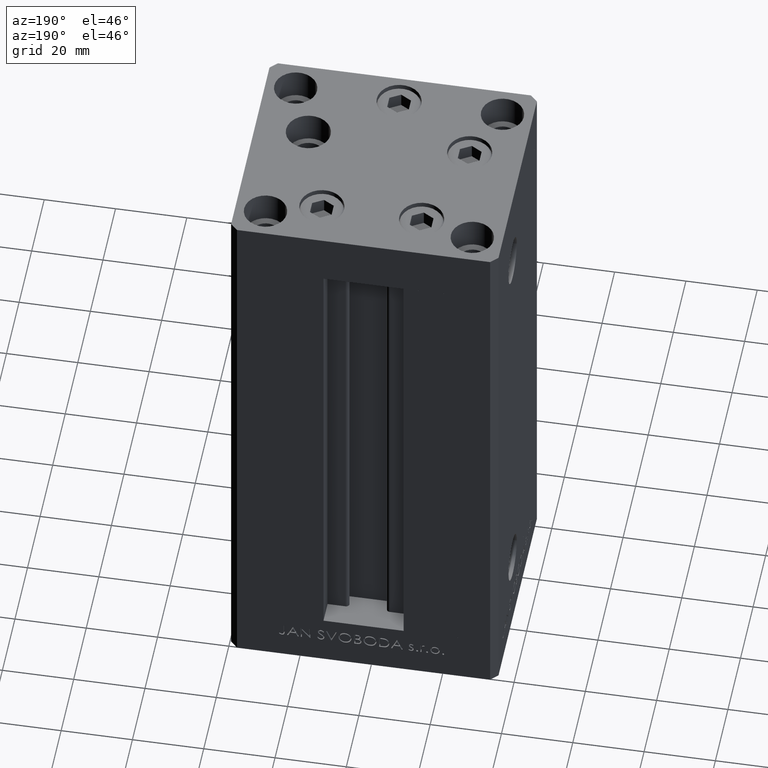
[diagram: clean part render]
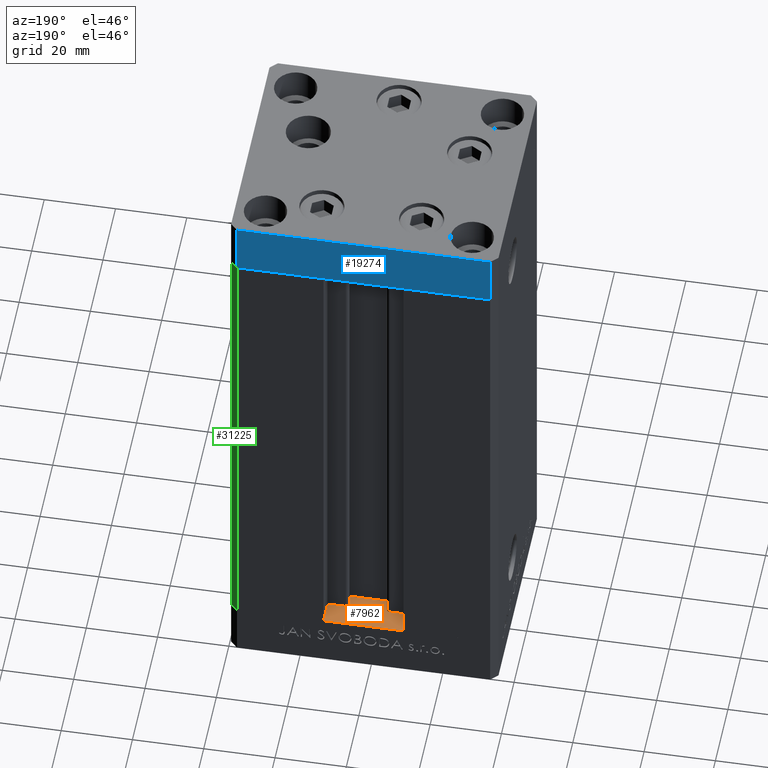
[diagram: same view with three faces highlighted in distinct colors, each labeled with its STEP entity id]
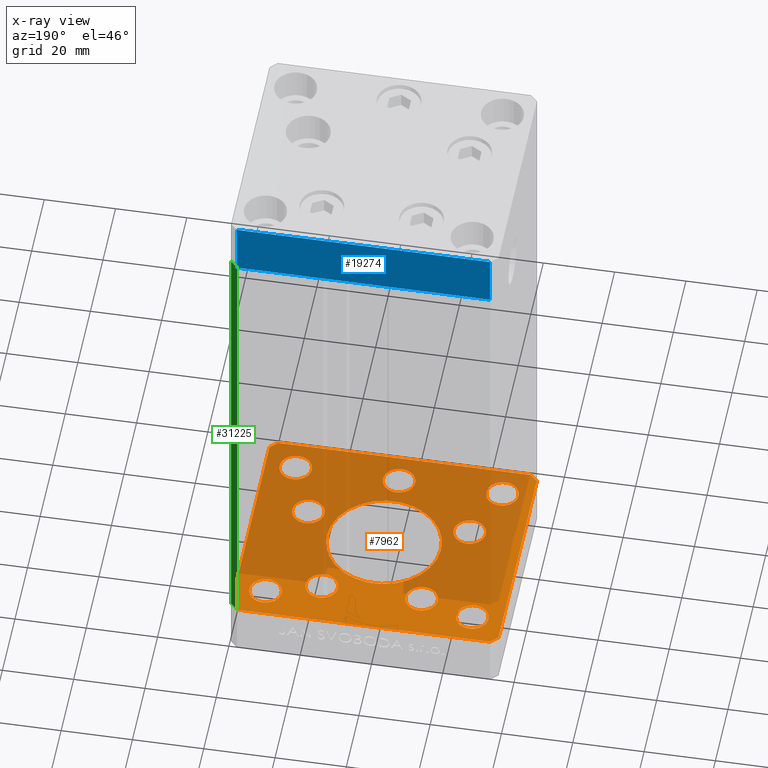
[diagram: x-ray of the same camera — body ghosted, the three highlighted faces saturated]
A machine part, auxiliary view with three faces highlighted in distinct colors.
The next image is the same camera in x-ray (body ghosted, the three faces saturated) — at least one of them is partly hidden behind the body in this view.
Their STEP definitions:

[orange] entity #7962 — the highlighted planar face has unit normal (0, 0, -1).
#389 = ORIENTED_EDGE ( 'NONE', *, *, #17131, .T. ) ;
#549 = VERTEX_POINT ( 'NONE', #37712 ) ;
#665 = EDGE_CURVE ( 'NONE', #48239, #40675, #27623, .T. ) ;
#1143 = CARTESIAN_POINT ( 'NONE',  ( 22.62741699796953299, -8.000000000000000000, -15.00000000000000000 ) ) ;
#1375 = EDGE_LOOP ( 'NONE', ( #14475, #33980 ) ) ;
#1492 = CARTESIAN_POINT ( 'NONE',  ( 18.49106857963324657, 19.50000000000000000, -15.00000000000000000 ) ) ;
#1618 = CARTESIAN_POINT ( 'NONE',  ( -33.50000000000000000, -23.99999999999999645, -15.00000000000000000 ) ) ;
#1633 = DIRECTION ( 'NONE',  ( 1.000000000000000000, 0.000000000000000000, 0.000000000000000000 ) ) ;
#1649 = CARTESIAN_POINT ( 'NONE',  ( -29.00000000000000000, -23.99999999999999645, -15.00000000000000000 ) ) ;
#1726 = CARTESIAN_POINT ( 'NONE',  ( -13.99106857963324124, 19.50000000000000000, -15.00000000000000000 ) ) ;
#2021 = FACE_BOUND ( 'NONE', #40340, .T. ) ;
#2109 = AXIS2_PLACEMENT_3D ( 'NONE', #15072, #14821, #11311 ) ;
#2144 = DIRECTION ( 'NONE',  ( 1.000000000000000000, 0.000000000000000000, 0.000000000000000000 ) ) ;
#2594 = ORIENTED_EDGE ( 'NONE', *, *, #11873, .T. ) ;
#2760 = DIRECTION ( 'NONE',  ( 1.000000000000000000, 0.000000000000000000, 0.000000000000000000 ) ) ;
#2959 = DIRECTION ( 'NONE',  ( 1.000000000000000000, 0.000000000000000000, 0.000000000000000000 ) ) ;
#3828 = VERTEX_POINT ( 'NONE', #26213 ) ;
#3832 = CARTESIAN_POINT ( 'NONE',  ( 0.000000000000000000, 0.000000000000000000, -15.00000000000000000 ) ) ;
#3853 = LINE ( 'NONE', #26477, #18593 ) ;
#4710 = VERTEX_POINT ( 'NONE', #7095 ) ;
#4744 = ORIENTED_EDGE ( 'NONE', *, *, #665, .T. ) ;
#4761 = AXIS2_PLACEMENT_3D ( 'NONE', #11418, #30513, #14676 ) ;
#5422 = CARTESIAN_POINT ( 'NONE',  ( 35.50000000000000000, 32.49999999999999289, -15.00000000000000000 ) ) ;
#5463 = CARTESIAN_POINT ( 'NONE',  ( 37.50000000000000711, 30.50000000000001421, -15.00000000000000000 ) ) ;
#5563 = ORIENTED_EDGE ( 'NONE', *, *, #34541, .T. ) ;
#5908 = DIRECTION ( 'NONE',  ( 1.000000000000000000, 0.000000000000000000, 0.000000000000000000 ) ) ;
#6121 = ORIENTED_EDGE ( 'NONE', *, *, #16997, .T. ) ;
#6242 = CARTESIAN_POINT ( 'NONE',  ( -35.50000000000001421, -32.50000000000000711, -15.00000000000000000 ) ) ;
#6304 = FACE_BOUND ( 'NONE', #22305, .T. ) ;
#6325 = EDGE_CURVE ( 'NONE', #3828, #4710, #26069, .T. ) ;
#6387 = CIRCLE ( 'NONE', #4761, 4.500000000000005329 ) ;
#6556 = CIRCLE ( 'NONE', #34632, 16.00000000000000000 ) ;
#6636 = VERTEX_POINT ( 'NONE', #26996 ) ;
#6801 = FACE_BOUND ( 'NONE', #38789, .T. ) ;
#6893 = CARTESIAN_POINT ( 'NONE',  ( 37.50000000000000711, -30.49999999999992895, -15.00000000000000000 ) ) ;
#7095 = CARTESIAN_POINT ( 'NONE',  ( 27.12741699796953654, -8.000000000000000000, -15.00000000000000000 ) ) ;
#7187 = LINE ( 'NONE', #23492, #39725 ) ;
#7531 = AXIS2_PLACEMENT_3D ( 'NONE', #39502, #35723, #43026 ) ;
#7655 = CARTESIAN_POINT ( 'NONE',  ( -37.50000000000000000, -30.50000000000004263, -15.00000000000000000 ) ) ;
#7962 = ADVANCED_FACE ( 'NONE', ( #13839, #6801, #40969, #28916, #17342, #44722, #2021, #6304, #9829, #17600, #32431 ), #47742, .F. ) ;
#8389 = DIRECTION ( 'NONE',  ( 1.000000000000000000, 0.000000000000000000, 0.000000000000000000 ) ) ;
#8611 = DIRECTION ( 'NONE',  ( 0.000000000000000000, -0.000000000000000000, -1.000000000000000000 ) ) ;
#8674 = VERTEX_POINT ( 'NONE', #36187 ) ;
#8741 = ORIENTED_EDGE ( 'NONE', *, *, #24234, .F. ) ;
#8829 = EDGE_CURVE ( 'NONE', #46564, #41507, #10557, .T. ) ;
#9117 = DIRECTION ( 'NONE',  ( -0.000000000000000000, 0.000000000000000000, 1.000000000000000000 ) ) ;
#9727 = EDGE_CURVE ( 'NONE', #549, #46564, #47928, .T. ) ;
#9829 = FACE_OUTER_BOUND ( 'NONE', #30497, .T. ) ;
#9933 = DIRECTION ( 'NONE',  ( -0.000000000000000000, 0.000000000000000000, 1.000000000000000000 ) ) ;
#10395 = EDGE_CURVE ( 'NONE', #17504, #26304, #18147, .T. ) ;
#10557 = LINE ( 'NONE', #37919, #48578 ) ;
#11031 = DIRECTION ( 'NONE',  ( -0.000000000000000000, 0.000000000000000000, 1.000000000000000000 ) ) ;
#11156 = CIRCLE ( 'NONE', #21578, 4.499999999999999112 ) ;
#11209 = VERTEX_POINT ( 'NONE', #26112 ) ;
#11311 = DIRECTION ( 'NONE',  ( 1.000000000000000000, 0.000000000000000000, 0.000000000000000000 ) ) ;
#11418 = CARTESIAN_POINT ( 'NONE',  ( 13.99106857963324124, 19.50000000000000000, -15.00000000000000000 ) ) ;
#11452 = CARTESIAN_POINT ( 'NONE',  ( 0.000000000000000000, -24.00000000000001066, -15.00000000000000000 ) ) ;
#11873 = EDGE_CURVE ( 'NONE', #14382, #11209, #43080, .T. ) ;
#11947 = EDGE_LOOP ( 'NONE', ( #8741, #40451 ) ) ;
#12068 = DIRECTION ( 'NONE',  ( -0.000000000000000000, 0.000000000000000000, 1.000000000000000000 ) ) ;
#12475 = EDGE_LOOP ( 'NONE', ( #44978, #5563 ) ) ;
#12590 = CARTESIAN_POINT ( 'NONE',  ( -18.49106857963323947, 19.50000000000000000, -15.00000000000000000 ) ) ;
#12608 = DIRECTION ( 'NONE',  ( 1.000000000000000000, 0.000000000000000000, 0.000000000000000000 ) ) ;
#12839 = CARTESIAN_POINT ( 'NONE',  ( -22.62741699796953299, -8.000000000000000000, -15.00000000000000000 ) ) ;
#12952 = DIRECTION ( 'NONE',  ( -0.000000000000000000, 0.000000000000000000, 1.000000000000000000 ) ) ;
#12957 = DIRECTION ( 'NONE',  ( -0.000000000000000000, 0.000000000000000000, 1.000000000000000000 ) ) ;
#12995 = VERTEX_POINT ( 'NONE', #34157 ) ;
#13241 = DIRECTION ( 'NONE',  ( 1.000000000000000000, 0.000000000000000000, 0.000000000000000000 ) ) ;
#13344 = VECTOR ( 'NONE', #36386, 1000.000000000000000 ) ;
#13352 = CARTESIAN_POINT ( 'NONE',  ( 35.50000000000000000, 32.49999999999999289, -15.00000000000000000 ) ) ;
#13742 = ORIENTED_EDGE ( 'NONE', *, *, #29387, .T. ) ;
#13839 = FACE_BOUND ( 'NONE', #11947, .T. ) ;
#14076 = CARTESIAN_POINT ( 'NONE',  ( -35.50000000000000711, 32.49999999999997868, -15.00000000000000000 ) ) ;
#14290 = CARTESIAN_POINT ( 'NONE',  ( 24.50000000000000000, 24.00000000000000355, -15.00000000000000000 ) ) ;
#14324 = DIRECTION ( 'NONE',  ( 0.7071067811865463515, 0.7071067811865487940, 0.000000000000000000 ) ) ;
#14332 = DIRECTION ( 'NONE',  ( -0.000000000000000000, 0.000000000000000000, 1.000000000000000000 ) ) ;
#14382 = VERTEX_POINT ( 'NONE', #33959 ) ;
#14443 = VERTEX_POINT ( 'NONE', #12590 ) ;
#14475 = ORIENTED_EDGE ( 'NONE', *, *, #10395, .T. ) ;
#14625 = CARTESIAN_POINT ( 'NONE',  ( 0.000000000000000000, 0.000000000000000000, -15.00000000000000000 ) ) ;
#14676 = DIRECTION ( 'NONE',  ( 1.000000000000000000, 0.000000000000000000, 0.000000000000000000 ) ) ;
#14821 = DIRECTION ( 'NONE',  ( -0.000000000000000000, 0.000000000000000000, 1.000000000000000000 ) ) ;
#15055 = AXIS2_PLACEMENT_3D ( 'NONE', #17706, #9933, #5908 ) ;
#15072 = CARTESIAN_POINT ( 'NONE',  ( 0.000000000000000000, -24.00000000000001066, -15.00000000000000000 ) ) ;
#15096 = AXIS2_PLACEMENT_3D ( 'NONE', #42765, #42271, #12608 ) ;
#15437 = VERTEX_POINT ( 'NONE', #14076 ) ;
#15854 = CIRCLE ( 'NONE', #38338, 4.500000000000000888 ) ;
#15914 = DIRECTION ( 'NONE',  ( 2.275047181608926165E-16, -1.000000000000000000, 0.000000000000000000 ) ) ;
#15970 = VERTEX_POINT ( 'NONE', #26001 ) ;
#16012 = ORIENTED_EDGE ( 'NONE', *, *, #8829, .F. ) ;
#16135 = CIRCLE ( 'NONE', #23379, 4.500000000000000888 ) ;
#16682 = ORIENTED_EDGE ( 'NONE', *, *, #24018, .F. ) ;
#16962 = CARTESIAN_POINT ( 'NONE',  ( 13.99106857963324124, 19.50000000000000000, -15.00000000000000000 ) ) ;
#16992 = CARTESIAN_POINT ( 'NONE',  ( 29.00000000000000000, 24.00000000000000355, -15.00000000000000000 ) ) ;
#16997 = EDGE_CURVE ( 'NONE', #4710, #3828, #48723, .T. ) ;
#17131 = EDGE_CURVE ( 'NONE', #14443, #6636, #27868, .T. ) ;
#17148 = CARTESIAN_POINT ( 'NONE',  ( 4.500000000000001776, -24.00000000000001066, -15.00000000000000000 ) ) ;
#17342 = FACE_BOUND ( 'NONE', #41907, .T. ) ;
#17504 = VERTEX_POINT ( 'NONE', #17148 ) ;
#17600 = FACE_BOUND ( 'NONE', #12475, .T. ) ;
#17693 = DIRECTION ( 'NONE',  ( 0.000000000000000000, 1.000000000000000000, 0.000000000000000000 ) ) ;
#17706 = CARTESIAN_POINT ( 'NONE',  ( -13.99106857963324124, 19.50000000000000000, -15.00000000000000000 ) ) ;
#17739 = EDGE_LOOP ( 'NONE', ( #23174, #4744 ) ) ;
#17991 = EDGE_CURVE ( 'NONE', #21274, #21705, #48758, .T. ) ;
#18147 = CIRCLE ( 'NONE', #2109, 4.500000000000001776 ) ;
#18286 = VECTOR ( 'NONE', #41816, 1000.000000000000000 ) ;
#18593 = VECTOR ( 'NONE', #15914, 1000.000000000000000 ) ;
#19271 = VERTEX_POINT ( 'NONE', #47776 ) ;
#19403 = ORIENTED_EDGE ( 'NONE', *, *, #39664, .F. ) ;
#20247 = DIRECTION ( 'NONE',  ( -0.000000000000000000, 0.000000000000000000, 1.000000000000000000 ) ) ;
#20428 = EDGE_CURVE ( 'NONE', #40257, #29261, #30416, .T. ) ;
#20458 = ORIENTED_EDGE ( 'NONE', *, *, #31330, .F. ) ;
#21062 = EDGE_CURVE ( 'NONE', #12995, #42812, #6387, .T. ) ;
#21263 = AXIS2_PLACEMENT_3D ( 'NONE', #39592, #20247, #24030 ) ;
#21274 = VERTEX_POINT ( 'NONE', #24951 ) ;
#21364 = CARTESIAN_POINT ( 'NONE',  ( 0.000000000000000000, 0.000000000000000000, -15.00000000000000000 ) ) ;
#21502 = AXIS2_PLACEMENT_3D ( 'NONE', #46375, #27296, #46124 ) ;
#21578 = AXIS2_PLACEMENT_3D ( 'NONE', #1726, #32382, #33859 ) ;
#21705 = VERTEX_POINT ( 'NONE', #46877 ) ;
#22012 = ORIENTED_EDGE ( 'NONE', *, *, #6325, .T. ) ;
#22305 = EDGE_LOOP ( 'NONE', ( #38050, #20458 ) ) ;
#23174 = ORIENTED_EDGE ( 'NONE', *, *, #27993, .T. ) ;
#23379 = AXIS2_PLACEMENT_3D ( 'NONE', #45191, #11031, #30126 ) ;
#23492 = CARTESIAN_POINT ( 'NONE',  ( -35.50000000000000711, 32.49999999999997868, -15.00000000000000000 ) ) ;
#23654 = DIRECTION ( 'NONE',  ( -0.000000000000000000, 0.000000000000000000, 1.000000000000000000 ) ) ;
#23847 = EDGE_CURVE ( 'NONE', #42812, #12995, #43968, .T. ) ;
#23860 = VERTEX_POINT ( 'NONE', #5422 ) ;
#24018 = EDGE_CURVE ( 'NONE', #30009, #549, #26235, .T. ) ;
#24030 = DIRECTION ( 'NONE',  ( 1.000000000000000000, 0.000000000000000000, 0.000000000000000000 ) ) ;
#24234 = EDGE_CURVE ( 'NONE', #15970, #19271, #30346, .T. ) ;
#24722 = AXIS2_PLACEMENT_3D ( 'NONE', #16962, #12957, #25011 ) ;
#24951 = CARTESIAN_POINT ( 'NONE',  ( -24.50000000000000000, 24.00000000000000711, -15.00000000000000000 ) ) ;
#24994 = AXIS2_PLACEMENT_3D ( 'NONE', #16992, #32327, #13241 ) ;
#25011 = DIRECTION ( 'NONE',  ( 1.000000000000000000, 0.000000000000000000, 0.000000000000000000 ) ) ;
#25445 = DIRECTION ( 'NONE',  ( 0.000000000000000000, -0.000000000000000000, -1.000000000000000000 ) ) ;
#25955 = CARTESIAN_POINT ( 'NONE',  ( 37.50000000000000711, -30.49999999999992895, -15.00000000000000000 ) ) ;
#26001 = CARTESIAN_POINT ( 'NONE',  ( 16.00000000000000000, 0.000000000000000000, -15.00000000000000000 ) ) ;
#26069 = CIRCLE ( 'NONE', #21263, 4.500000000000000888 ) ;
#26112 = CARTESIAN_POINT ( 'NONE',  ( -18.12741699796953654, -8.000000000000000000, -15.00000000000000000 ) ) ;
#26213 = CARTESIAN_POINT ( 'NONE',  ( 18.12741699796953299, -8.000000000000000000, -15.00000000000000000 ) ) ;
#26235 = LINE ( 'NONE', #7655, #18286 ) ;
#26304 = VERTEX_POINT ( 'NONE', #39540 ) ;
#26477 = CARTESIAN_POINT ( 'NONE',  ( -37.50000000000001421, 30.50000000000000000, -15.00000000000000000 ) ) ;
#26526 = DIRECTION ( 'NONE',  ( 1.000000000000000000, 0.000000000000000000, 0.000000000000000000 ) ) ;
#26683 = VECTOR ( 'NONE', #47584, 1000.000000000000000 ) ;
#26736 = EDGE_CURVE ( 'NONE', #32322, #31662, #15854, .T. ) ;
#26903 = DIRECTION ( 'NONE',  ( 1.000000000000000000, 0.000000000000000000, 0.000000000000000000 ) ) ;
#26996 = CARTESIAN_POINT ( 'NONE',  ( -9.491068579633243019, 19.50000000000000000, -15.00000000000000000 ) ) ;
#27014 = ORIENTED_EDGE ( 'NONE', *, *, #20428, .F. ) ;
#27069 = AXIS2_PLACEMENT_3D ( 'NONE', #1143, #12952, #1633 ) ;
#27296 = DIRECTION ( 'NONE',  ( -0.000000000000000000, 0.000000000000000000, 1.000000000000000000 ) ) ;
#27421 = ORIENTED_EDGE ( 'NONE', *, *, #49046, .F. ) ;
#27475 = CARTESIAN_POINT ( 'NONE',  ( 29.00000000000000000, 24.00000000000000355, -15.00000000000000000 ) ) ;
#27622 = ORIENTED_EDGE ( 'NONE', *, *, #42098, .F. ) ;
#27623 = CIRCLE ( 'NONE', #29916, 4.499999999999997335 ) ;
#27868 = CIRCLE ( 'NONE', #15055, 4.499999999999999112 ) ;
#27993 = EDGE_CURVE ( 'NONE', #40675, #48239, #33532, .T. ) ;
#28544 = DIRECTION ( 'NONE',  ( 0.000000000000000000, -0.000000000000000000, -1.000000000000000000 ) ) ;
#28674 = DIRECTION ( 'NONE',  ( -1.000000000000000000, -1.954618001100627573E-16, 0.000000000000000000 ) ) ;
#28916 = FACE_BOUND ( 'NONE', #42706, .T. ) ;
#29183 = CIRCLE ( 'NONE', #7531, 4.499999999999997335 ) ;
#29261 = VERTEX_POINT ( 'NONE', #38944 ) ;
#29387 = EDGE_CURVE ( 'NONE', #6636, #14443, #11156, .T. ) ;
#29550 = ORIENTED_EDGE ( 'NONE', *, *, #36984, .F. ) ;
#29916 = AXIS2_PLACEMENT_3D ( 'NONE', #35427, #12068, #26903 ) ;
#30009 = VERTEX_POINT ( 'NONE', #30490 ) ;
#30037 = AXIS2_PLACEMENT_3D ( 'NONE', #11452, #9117, #26526 ) ;
#30126 = DIRECTION ( 'NONE',  ( 1.000000000000000000, 0.000000000000000000, 0.000000000000000000 ) ) ;
#30346 = CIRCLE ( 'NONE', #33538, 16.00000000000000000 ) ;
#30416 = CIRCLE ( 'NONE', #48830, 4.500000000000000888 ) ;
#30490 = CARTESIAN_POINT ( 'NONE',  ( -37.50000000000000000, -30.50000000000004263, -15.00000000000000000 ) ) ;
#30497 = EDGE_LOOP ( 'NONE', ( #16682, #39880, #27421, #29550, #27622, #38638, #16012, #32836 ) ) ;
#30513 = DIRECTION ( 'NONE',  ( -0.000000000000000000, 0.000000000000000000, 1.000000000000000000 ) ) ;
#30677 = CARTESIAN_POINT ( 'NONE',  ( -24.50000000000000000, -23.99999999999999645, -15.00000000000000000 ) ) ;
#31224 = DIRECTION ( 'NONE',  ( 1.000000000000000000, 0.000000000000000000, 0.000000000000000000 ) ) ;
#31294 = LINE ( 'NONE', #47089, #26683 ) ;
#31330 = EDGE_CURVE ( 'NONE', #31662, #32322, #32089, .T. ) ;
#31662 = VERTEX_POINT ( 'NONE', #1618 ) ;
#31712 = AXIS2_PLACEMENT_3D ( 'NONE', #21364, #14332, #2760 ) ;
#32074 = ORIENTED_EDGE ( 'NONE', *, *, #23847, .T. ) ;
#32089 = CIRCLE ( 'NONE', #48903, 4.500000000000000888 ) ;
#32322 = VERTEX_POINT ( 'NONE', #30677 ) ;
#32327 = DIRECTION ( 'NONE',  ( 0.000000000000000000, -0.000000000000000000, -1.000000000000000000 ) ) ;
#32382 = DIRECTION ( 'NONE',  ( -0.000000000000000000, 0.000000000000000000, 1.000000000000000000 ) ) ;
#32431 = FACE_BOUND ( 'NONE', #17739, .T. ) ;
#32836 = ORIENTED_EDGE ( 'NONE', *, *, #9727, .F. ) ;
#33180 = LINE ( 'NONE', #13352, #37073 ) ;
#33532 = CIRCLE ( 'NONE', #15096, 4.499999999999997335 ) ;
#33538 = AXIS2_PLACEMENT_3D ( 'NONE', #14625, #25445, #41512 ) ;
#33686 = ORIENTED_EDGE ( 'NONE', *, *, #21062, .T. ) ;
#33759 = EDGE_CURVE ( 'NONE', #41507, #40428, #47836, .T. ) ;
#33859 = DIRECTION ( 'NONE',  ( 1.000000000000000000, 0.000000000000000000, 0.000000000000000000 ) ) ;
#33959 = CARTESIAN_POINT ( 'NONE',  ( -27.12741699796953299, -8.000000000000000000, -15.00000000000000000 ) ) ;
#33980 = ORIENTED_EDGE ( 'NONE', *, *, #45886, .T. ) ;
#34157 = CARTESIAN_POINT ( 'NONE',  ( 9.491068579633235913, 19.50000000000000000, -15.00000000000000000 ) ) ;
#34541 = EDGE_CURVE ( 'NONE', #21705, #21274, #16135, .T. ) ;
#34632 = AXIS2_PLACEMENT_3D ( 'NONE', #3832, #8611, #31224 ) ;
#35427 = CARTESIAN_POINT ( 'NONE',  ( 29.00000000000000355, -23.99999999999999645, -15.00000000000000000 ) ) ;
#35723 = DIRECTION ( 'NONE',  ( -0.000000000000000000, 0.000000000000000000, 1.000000000000000000 ) ) ;
#36158 = ORIENTED_EDGE ( 'NONE', *, *, #44976, .T. ) ;
#36187 = CARTESIAN_POINT ( 'NONE',  ( -37.50000000000001421, 30.50000000000000000, -15.00000000000000000 ) ) ;
#36386 = DIRECTION ( 'NONE',  ( 1.000000000000000000, 1.172770800660376149E-15, 0.000000000000000000 ) ) ;
#36984 = EDGE_CURVE ( 'NONE', #23860, #15437, #33180, .T. ) ;
#37073 = VECTOR ( 'NONE', #28674, 1000.000000000000000 ) ;
#37643 = CARTESIAN_POINT ( 'NONE',  ( -29.00000000000000000, -23.99999999999999645, -15.00000000000000000 ) ) ;
#37712 = CARTESIAN_POINT ( 'NONE',  ( -35.50000000000001421, -32.50000000000000711, -15.00000000000000000 ) ) ;
#37919 = CARTESIAN_POINT ( 'NONE',  ( 35.50000000000001421, -32.49999999999992184, -15.00000000000000000 ) ) ;
#38037 = CIRCLE ( 'NONE', #30037, 4.500000000000001776 ) ;
#38050 = ORIENTED_EDGE ( 'NONE', *, *, #26736, .F. ) ;
#38318 = DIRECTION ( 'NONE',  ( -0.7071067811865524577, -0.7071067811865426878, 0.000000000000000000 ) ) ;
#38328 = EDGE_LOOP ( 'NONE', ( #13742, #389 ) ) ;
#38338 = AXIS2_PLACEMENT_3D ( 'NONE', #1649, #28544, #2144 ) ;
#38638 = ORIENTED_EDGE ( 'NONE', *, *, #33759, .F. ) ;
#38789 = EDGE_LOOP ( 'NONE', ( #36158, #2594 ) ) ;
#38935 = EDGE_CURVE ( 'NONE', #19271, #15970, #6556, .T. ) ;
#38944 = CARTESIAN_POINT ( 'NONE',  ( 33.50000000000000000, 24.00000000000000355, -15.00000000000000000 ) ) ;
#39145 = CARTESIAN_POINT ( 'NONE',  ( 35.50000000000001421, -32.49999999999992184, -15.00000000000000000 ) ) ;
#39502 = CARTESIAN_POINT ( 'NONE',  ( -22.62741699796953299, -8.000000000000000000, -15.00000000000000000 ) ) ;
#39540 = CARTESIAN_POINT ( 'NONE',  ( -4.500000000000001776, -24.00000000000001066, -15.00000000000000000 ) ) ;
#39592 = CARTESIAN_POINT ( 'NONE',  ( 22.62741699796953299, -8.000000000000000000, -15.00000000000000000 ) ) ;
#39664 = EDGE_CURVE ( 'NONE', #29261, #40257, #45846, .T. ) ;
#39715 = DIRECTION ( 'NONE',  ( 1.000000000000000000, 0.000000000000000000, 0.000000000000000000 ) ) ;
#39725 = VECTOR ( 'NONE', #38318, 1000.000000000000000 ) ;
#39880 = ORIENTED_EDGE ( 'NONE', *, *, #40897, .F. ) ;
#40257 = VERTEX_POINT ( 'NONE', #14290 ) ;
#40340 = EDGE_LOOP ( 'NONE', ( #19403, #27014 ) ) ;
#40428 = VERTEX_POINT ( 'NONE', #5463 ) ;
#40451 = ORIENTED_EDGE ( 'NONE', *, *, #38935, .F. ) ;
#40675 = VERTEX_POINT ( 'NONE', #43349 ) ;
#40897 = EDGE_CURVE ( 'NONE', #8674, #30009, #3853, .T. ) ;
#40969 = FACE_BOUND ( 'NONE', #1375, .T. ) ;
#41507 = VERTEX_POINT ( 'NONE', #25955 ) ;
#41512 = DIRECTION ( 'NONE',  ( 1.000000000000000000, 0.000000000000000000, 0.000000000000000000 ) ) ;
#41664 = DIRECTION ( 'NONE',  ( 0.000000000000000000, -0.000000000000000000, -1.000000000000000000 ) ) ;
#41816 = DIRECTION ( 'NONE',  ( 0.7071067811865512365, -0.7071067811865439090, 0.000000000000000000 ) ) ;
#41907 = EDGE_LOOP ( 'NONE', ( #32074, #33686 ) ) ;
#42098 = EDGE_CURVE ( 'NONE', #40428, #23860, #31294, .T. ) ;
#42271 = DIRECTION ( 'NONE',  ( -0.000000000000000000, 0.000000000000000000, 1.000000000000000000 ) ) ;
#42706 = EDGE_LOOP ( 'NONE', ( #6121, #22012 ) ) ;
#42765 = CARTESIAN_POINT ( 'NONE',  ( 29.00000000000000355, -23.99999999999999645, -15.00000000000000000 ) ) ;
#42805 = DIRECTION ( 'NONE',  ( 0.000000000000000000, -0.000000000000000000, -1.000000000000000000 ) ) ;
#42812 = VERTEX_POINT ( 'NONE', #1492 ) ;
#43026 = DIRECTION ( 'NONE',  ( 1.000000000000000000, 0.000000000000000000, 0.000000000000000000 ) ) ;
#43080 = CIRCLE ( 'NONE', #43890, 4.499999999999997335 ) ;
#43349 = CARTESIAN_POINT ( 'NONE',  ( 33.50000000000000000, -23.99999999999999645, -15.00000000000000000 ) ) ;
#43890 = AXIS2_PLACEMENT_3D ( 'NONE', #12839, #23654, #39715 ) ;
#43968 = CIRCLE ( 'NONE', #24722, 4.500000000000005329 ) ;
#44722 = FACE_BOUND ( 'NONE', #38328, .T. ) ;
#44976 = EDGE_CURVE ( 'NONE', #11209, #14382, #29183, .T. ) ;
#44978 = ORIENTED_EDGE ( 'NONE', *, *, #17991, .T. ) ;
#44996 = VECTOR ( 'NONE', #17693, 1000.000000000000000 ) ;
#45191 = CARTESIAN_POINT ( 'NONE',  ( -29.00000000000000000, 24.00000000000000711, -15.00000000000000000 ) ) ;
#45846 = CIRCLE ( 'NONE', #24994, 4.500000000000000888 ) ;
#45886 = EDGE_CURVE ( 'NONE', #26304, #17504, #38037, .T. ) ;
#46124 = DIRECTION ( 'NONE',  ( 1.000000000000000000, 0.000000000000000000, 0.000000000000000000 ) ) ;
#46375 = CARTESIAN_POINT ( 'NONE',  ( -29.00000000000000000, 24.00000000000000711, -15.00000000000000000 ) ) ;
#46564 = VERTEX_POINT ( 'NONE', #39145 ) ;
#46877 = CARTESIAN_POINT ( 'NONE',  ( -33.50000000000000000, 24.00000000000000711, -15.00000000000000000 ) ) ;
#47089 = CARTESIAN_POINT ( 'NONE',  ( 37.50000000000000711, 30.50000000000001421, -15.00000000000000000 ) ) ;
#47571 = CARTESIAN_POINT ( 'NONE',  ( 24.50000000000000711, -23.99999999999999645, -15.00000000000000000 ) ) ;
#47584 = DIRECTION ( 'NONE',  ( -0.7071067811865524577, 0.7071067811865426878, 0.000000000000000000 ) ) ;
#47742 = PLANE ( 'NONE',  #31712 ) ;
#47776 = CARTESIAN_POINT ( 'NONE',  ( -16.00000000000000000, 1.959434878635765131E-15, -15.00000000000000000 ) ) ;
#47836 = LINE ( 'NONE', #6893, #44996 ) ;
#47928 = LINE ( 'NONE', #6242, #13344 ) ;
#48239 = VERTEX_POINT ( 'NONE', #47571 ) ;
#48578 = VECTOR ( 'NONE', #14324, 1000.000000000000000 ) ;
#48723 = CIRCLE ( 'NONE', #27069, 4.500000000000000888 ) ;
#48758 = CIRCLE ( 'NONE', #21502, 4.500000000000000888 ) ;
#48830 = AXIS2_PLACEMENT_3D ( 'NONE', #27475, #42805, #8389 ) ;
#48903 = AXIS2_PLACEMENT_3D ( 'NONE', #37643, #41664, #2959 ) ;
#49046 = EDGE_CURVE ( 'NONE', #15437, #8674, #7187, .T. ) ;

[blue] entity #19274 — the highlighted planar face has unit normal (-0, 1, 0).
#1120 = CARTESIAN_POINT ( 'NONE',  ( 35.49999999999992184, 32.50000000000000711, -15.00000000000000000 ) ) ;
#5589 = PLANE ( 'NONE',  #25524 ) ;
#5923 = DIRECTION ( 'NONE',  ( -1.000000000000000000, -1.954618001100629052E-16, 0.000000000000000000 ) ) ;
#8936 = DIRECTION ( 'NONE',  ( -1.000000000000000000, -1.954618001100629052E-16, 0.000000000000000000 ) ) ;
#9358 = DIRECTION ( 'NONE',  ( -1.954618001100629052E-16, 1.000000000000000000, 0.000000000000000000 ) ) ;
#12609 = VERTEX_POINT ( 'NONE', #33045 ) ;
#12611 = EDGE_CURVE ( 'NONE', #48441, #12609, #13468, .T. ) ;
#13295 = ORIENTED_EDGE ( 'NONE', *, *, #13410, .T. ) ;
#13410 = EDGE_CURVE ( 'NONE', #48038, #12609, #13720, .T. ) ;
#13468 = LINE ( 'NONE', #40341, #21437 ) ;
#13720 = LINE ( 'NONE', #40347, #33492 ) ;
#13831 = CARTESIAN_POINT ( 'NONE',  ( 35.49999999999992184, 32.50000000000000711, -15.00000000000000000 ) ) ;
#15365 = VERTEX_POINT ( 'NONE', #13831 ) ;
#19274 = ADVANCED_FACE ( 'NONE', ( #20906 ), #5589, .T. ) ;
#20415 = DIRECTION ( 'NONE',  ( -1.000000000000000000, -1.954618001100629052E-16, 0.000000000000000000 ) ) ;
#20467 = DIRECTION ( 'NONE',  ( 0.000000000000000000, 0.000000000000000000, 1.000000000000000000 ) ) ;
#20906 = FACE_OUTER_BOUND ( 'NONE', #43333, .T. ) ;
#21437 = VECTOR ( 'NONE', #5923, 1000.000000000000000 ) ;
#23754 = LINE ( 'NONE', #28516, #36175 ) ;
#24044 = CARTESIAN_POINT ( 'NONE',  ( -35.50000000000002842, 32.49999999999999289, -15.00000000000000000 ) ) ;
#25524 = AXIS2_PLACEMENT_3D ( 'NONE', #35495, #9358, #20415 ) ;
#28516 = CARTESIAN_POINT ( 'NONE',  ( 35.49999999999992184, 32.50000000000000711, -15.00000000000000000 ) ) ;
#33045 = CARTESIAN_POINT ( 'NONE',  ( -35.50000000000002842, 32.49999999999999289, 0.000000000000000000 ) ) ;
#33492 = VECTOR ( 'NONE', #37068, 1000.000000000000000 ) ;
#33660 = EDGE_CURVE ( 'NONE', #15365, #48038, #23754, .T. ) ;
#34624 = ORIENTED_EDGE ( 'NONE', *, *, #33660, .T. ) ;
#35495 = CARTESIAN_POINT ( 'NONE',  ( 35.49999999999992184, 32.50000000000000711, -15.00000000000000000 ) ) ;
#36175 = VECTOR ( 'NONE', #8936, 1000.000000000000000 ) ;
#37068 = DIRECTION ( 'NONE',  ( 0.000000000000000000, 0.000000000000000000, 1.000000000000000000 ) ) ;
#39809 = LINE ( 'NONE', #1120, #45161 ) ;
#40341 = CARTESIAN_POINT ( 'NONE',  ( 35.49999999999992184, 32.50000000000000711, 0.000000000000000000 ) ) ;
#40347 = CARTESIAN_POINT ( 'NONE',  ( -35.50000000000002842, 32.49999999999999289, -15.00000000000000000 ) ) ;
#42422 = ORIENTED_EDGE ( 'NONE', *, *, #12611, .F. ) ;
#43333 = EDGE_LOOP ( 'NONE', ( #42422, #44925, #34624, #13295 ) ) ;
#44683 = EDGE_CURVE ( 'NONE', #15365, #48441, #39809, .T. ) ;
#44925 = ORIENTED_EDGE ( 'NONE', *, *, #44683, .F. ) ;
#45161 = VECTOR ( 'NONE', #20467, 1000.000000000000000 ) ;
#48038 = VERTEX_POINT ( 'NONE', #24044 ) ;
#48441 = VERTEX_POINT ( 'NONE', #49546 ) ;
#49546 = CARTESIAN_POINT ( 'NONE',  ( 35.49999999999992184, 32.50000000000000711, 0.000000000000000000 ) ) ;

[green] entity #31225 — the highlighted planar face has unit normal (0.7071, 0.7071, 0).
#1030 = DIRECTION ( 'NONE',  ( -0.000000000000000000, -0.000000000000000000, -1.000000000000000000 ) ) ;
#3865 = VECTOR ( 'NONE', #39023, 1000.000000000000114 ) ;
#5015 = VERTEX_POINT ( 'NONE', #18806 ) ;
#5188 = DIRECTION ( 'NONE',  ( -0.000000000000000000, -0.000000000000000000, -1.000000000000000000 ) ) ;
#8036 = CARTESIAN_POINT ( 'NONE',  ( 35.50000000000000000, 32.49999999999999289, 0.000000000000000000 ) ) ;
#9400 = VECTOR ( 'NONE', #16054, 1000.000000000000114 ) ;
#9543 = CARTESIAN_POINT ( 'NONE',  ( 35.50000000000000000, 32.49999999999999289, 136.0000000000000000 ) ) ;
#12013 = AXIS2_PLACEMENT_3D ( 'NONE', #35722, #24183, #12864 ) ;
#12864 = DIRECTION ( 'NONE',  ( -0.7071067811865500152, 0.7071067811865451302, 0.000000000000000000 ) ) ;
#13526 = VECTOR ( 'NONE', #1030, 1000.000000000000000 ) ;
#15663 = EDGE_CURVE ( 'NONE', #18221, #5015, #38429, .T. ) ;
#16054 = DIRECTION ( 'NONE',  ( 0.7071067811865500152, -0.7071067811865451302, 0.000000000000000000 ) ) ;
#17226 = VECTOR ( 'NONE', #5188, 1000.000000000000000 ) ;
#18221 = VERTEX_POINT ( 'NONE', #35820 ) ;
#18806 = CARTESIAN_POINT ( 'NONE',  ( 37.50000000000000711, 30.50000000000000000, 0.000000000000000000 ) ) ;
#18896 = EDGE_CURVE ( 'NONE', #29354, #5015, #42514, .T. ) ;
#19277 = EDGE_CURVE ( 'NONE', #42748, #29354, #31730, .T. ) ;
#23262 = ORIENTED_EDGE ( 'NONE', *, *, #15663, .F. ) ;
#24183 = DIRECTION ( 'NONE',  ( 0.7071067811865451302, 0.7071067811865500152, -0.000000000000000000 ) ) ;
#24355 = CARTESIAN_POINT ( 'NONE',  ( 37.50000000000000711, 30.50000000000000000, 136.0000000000000000 ) ) ;
#27550 = LINE ( 'NONE', #42880, #17226 ) ;
#27685 = ORIENTED_EDGE ( 'NONE', *, *, #47250, .F. ) ;
#27957 = PLANE ( 'NONE',  #12013 ) ;
#29354 = VERTEX_POINT ( 'NONE', #24355 ) ;
#30345 = ORIENTED_EDGE ( 'NONE', *, *, #18896, .T. ) ;
#30595 = ORIENTED_EDGE ( 'NONE', *, *, #19277, .T. ) ;
#31225 = ADVANCED_FACE ( 'NONE', ( #43514 ), #27957, .T. ) ;
#31730 = LINE ( 'NONE', #47285, #3865 ) ;
#35459 = CARTESIAN_POINT ( 'NONE',  ( 37.50000000000000711, 30.50000000000000000, 136.0000000000000000 ) ) ;
#35722 = CARTESIAN_POINT ( 'NONE',  ( 35.50000000000000000, 32.49999999999999289, 136.0000000000000000 ) ) ;
#35820 = CARTESIAN_POINT ( 'NONE',  ( 35.50000000000000000, 32.49999999999999289, 0.000000000000000000 ) ) ;
#38429 = LINE ( 'NONE', #8036, #9400 ) ;
#39023 = DIRECTION ( 'NONE',  ( 0.7071067811865500152, -0.7071067811865451302, 0.000000000000000000 ) ) ;
#39732 = EDGE_LOOP ( 'NONE', ( #23262, #27685, #30595, #30345 ) ) ;
#42514 = LINE ( 'NONE', #35459, #13526 ) ;
#42748 = VERTEX_POINT ( 'NONE', #9543 ) ;
#42880 = CARTESIAN_POINT ( 'NONE',  ( 35.50000000000000000, 32.49999999999999289, 136.0000000000000000 ) ) ;
#43514 = FACE_OUTER_BOUND ( 'NONE', #39732, .T. ) ;
#47250 = EDGE_CURVE ( 'NONE', #42748, #18221, #27550, .T. ) ;
#47285 = CARTESIAN_POINT ( 'NONE',  ( 35.50000000000000000, 32.49999999999999289, 136.0000000000000000 ) ) ;